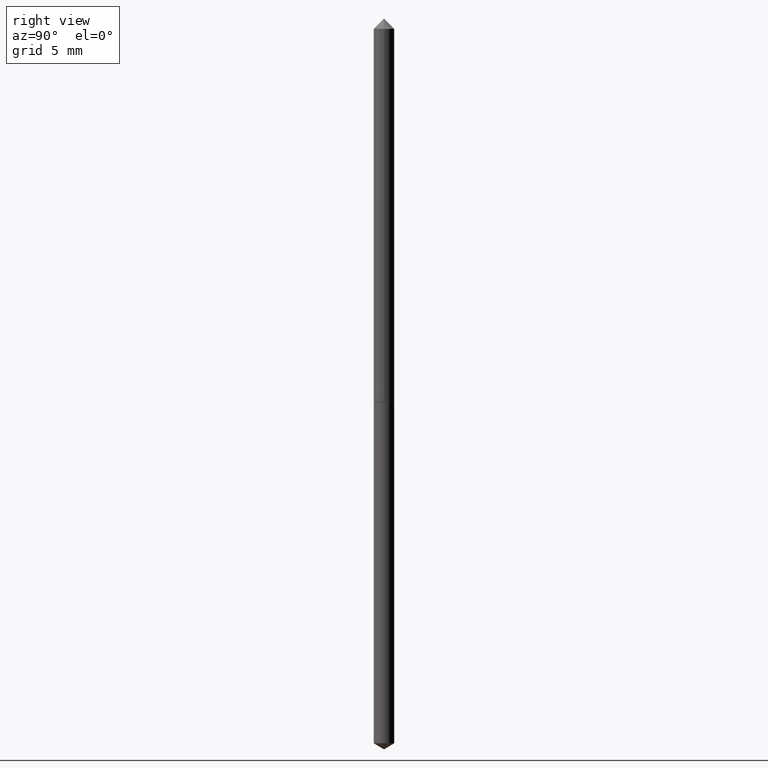
[diagram: clean part render]
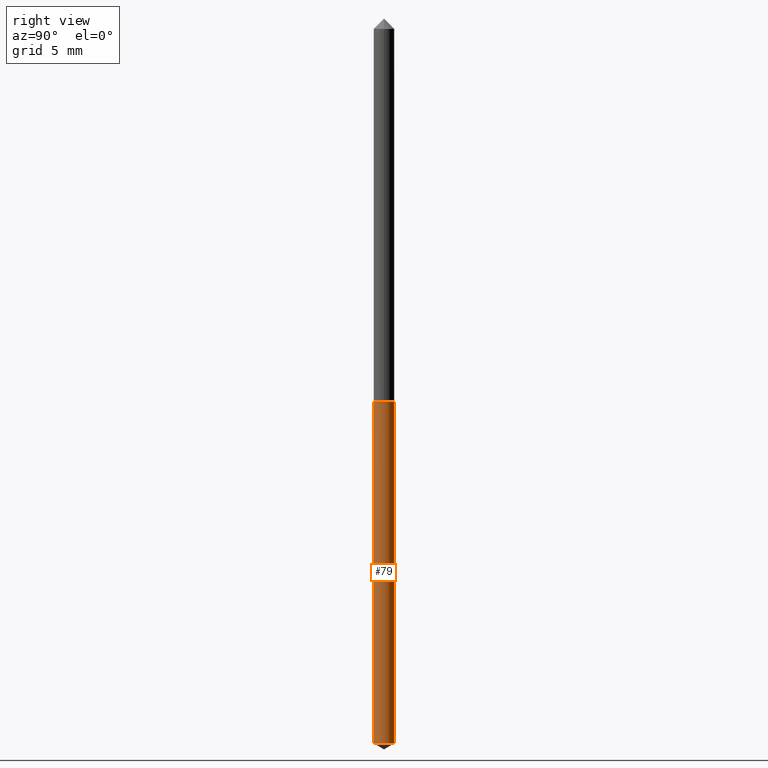
[diagram: same view with one face highlighted and labeled with its STEP entity id]
A machine part, right view. The second image highlights one B-rep face of the part: STEP entity #79.
In plain terms, the highlighted cylindrical surface (edge-blend (fillet) strip) has radius 0.5334 mm, axis along (-0, 0, 1).
Its self-contained STEP definition (entity closure, byte-faithful):
#4 = CARTESIAN_POINT ( 'NONE',  ( 3.637357827753472311E-29, -5.193149454724271505E-15, -1.487381927000421156 ) ) ;
#8 = ORIENTED_EDGE ( 'NONE', *, *, #346, .T. ) ;
#10 = VERTEX_POINT ( 'NONE', #68 ) ;
#11 = EDGE_CURVE ( 'NONE', #291, #173, #98, .T. ) ;
#21 = ORIENTED_EDGE ( 'NONE', *, *, #289, .F. ) ;
#31 = LINE ( 'NONE', #336, #231 ) ;
#37 = DIRECTION ( 'NONE',  ( -6.982962677686265133E-15, -1.000000000000000000, 0.000000000000000000 ) ) ;
#39 = CIRCLE ( 'NONE', #58, 0.02100000000000000477 ) ;
#48 = DIRECTION ( 'NONE',  ( -2.445485663670137245E-29, 3.491457197965155630E-15, 1.000000000000000000 ) ) ;
#54 = CARTESIAN_POINT ( 'NONE',  ( 1.492139745096575085E-16, 0.02099999999999723616, -0.7920000000000003704 ) ) ;
#58 = AXIS2_PLACEMENT_3D ( 'NONE', #4, #228, #37 ) ;
#68 = CARTESIAN_POINT ( 'NONE',  ( 1.492139745096574345E-16, 0.02099999999999481101, -1.487381927000421156 ) ) ;
#79 = ADVANCED_FACE ( 'NONE', ( #319 ), #326, .T. ) ;
#98 = LINE ( 'NONE', #105, #250 ) ;
#105 = CARTESIAN_POINT ( 'NONE',  ( -1.466422162313922235E-16, -0.02100000000000276992, -0.7920000000000000373 ) ) ;
#113 = CARTESIAN_POINT ( 'NONE',  ( -1.466422162313922235E-16, -0.02100000000000276992, -0.7920000000000000373 ) ) ;
#117 = DIRECTION ( 'NONE',  ( -6.982962677686265133E-15, -1.000000000000000000, 6.504399984914910847E-15 ) ) ;
#129 = VERTEX_POINT ( 'NONE', #54 ) ;
#173 = VERTEX_POINT ( 'NONE', #113 ) ;
#182 = DIRECTION ( 'NONE',  ( -6.982962677686265133E-15, -1.000000000000000000, 6.504399984914910847E-15 ) ) ;
#202 = AXIS2_PLACEMENT_3D ( 'NONE', #298, #358, #182 ) ;
#203 = DIRECTION ( 'NONE',  ( -2.445485663670137245E-29, 3.491457197965155630E-15, 1.000000000000000000 ) ) ;
#228 = DIRECTION ( 'NONE',  ( -2.445485663670137245E-29, 3.491457197965156024E-15, 1.000000000000000000 ) ) ;
#231 = VECTOR ( 'NONE', #203, 39.37007874015748143 ) ;
#232 = ORIENTED_EDGE ( 'NONE', *, *, #318, .T. ) ;
#238 = ORIENTED_EDGE ( 'NONE', *, *, #11, .F. ) ;
#250 = VECTOR ( 'NONE', #48, 39.37007874015748143 ) ;
#257 = EDGE_LOOP ( 'NONE', ( #232, #8, #21, #238 ) ) ;
#283 = CARTESIAN_POINT ( 'NONE',  ( 1.936811294498628434E-29, -2.765253220363771699E-15, -0.7920000000000001483 ) ) ;
#284 = DIRECTION ( 'NONE',  ( -2.445485663670137245E-29, 3.491457197965156024E-15, 1.000000000000000000 ) ) ;
#289 = EDGE_CURVE ( 'NONE', #173, #129, #327, .T. ) ;
#291 = VERTEX_POINT ( 'NONE', #338 ) ;
#298 = CARTESIAN_POINT ( 'NONE',  ( 1.936811294498628434E-29, -2.765253220363771699E-15, -0.7920000000000001483 ) ) ;
#318 = EDGE_CURVE ( 'NONE', #291, #10, #39, .T. ) ;
#319 = FACE_OUTER_BOUND ( 'NONE', #257, .T. ) ;
#326 = CYLINDRICAL_SURFACE ( 'NONE', #202, 0.02100000000000000477 ) ;
#327 = CIRCLE ( 'NONE', #343, 0.02100000000000000477 ) ;
#336 = CARTESIAN_POINT ( 'NONE',  ( 1.492139745096404000E-16, 0.02099999999999723616, -0.7920000000000003704 ) ) ;
#338 = CARTESIAN_POINT ( 'NONE',  ( -1.466422162313752877E-16, -0.02100000000000520201, -1.487381927000421156 ) ) ;
#343 = AXIS2_PLACEMENT_3D ( 'NONE', #283, #284, #117 ) ;
#346 = EDGE_CURVE ( 'NONE', #10, #129, #31, .T. ) ;
#358 = DIRECTION ( 'NONE',  ( -2.445485663670137245E-29, 3.491457197965156024E-15, 1.000000000000000000 ) ) ;